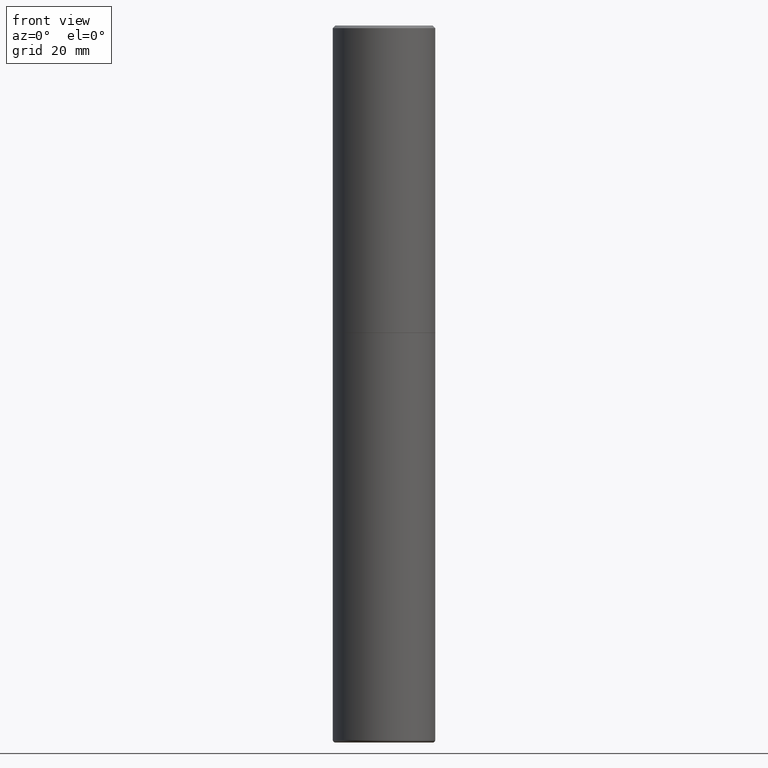
[diagram: clean part render]
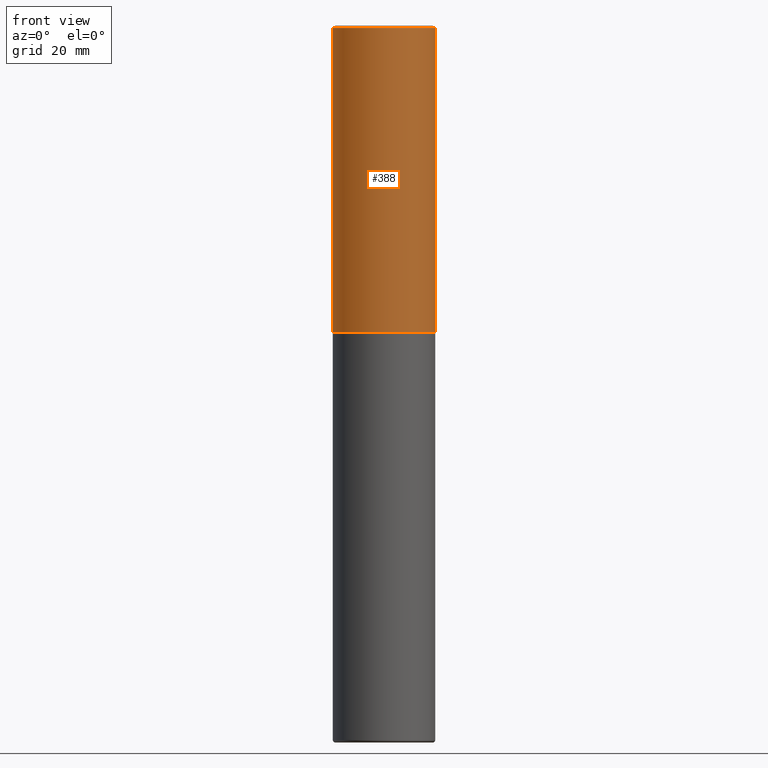
[diagram: same view with one face highlighted and labeled with its STEP entity id]
A machine part, front view. The second image highlights one B-rep face of the part: STEP entity #388.
In plain terms, the highlighted cylindrical surface (partial cylindrical patch) has radius 10 mm, axis along (-0, 0, 1).
Its self-contained STEP definition (entity closure, byte-faithful):
#5 = CARTESIAN_POINT ( 'NONE',  ( 0.3937000000000001609, -2.749192406205084400E-15, 1.919750796630860732E-29 ) ) ;
#7 = ORIENTED_EDGE ( 'NONE', *, *, #146, .F. ) ;
#9 = CARTESIAN_POINT ( 'NONE',  ( -0.3937000000000000499, 2.679362779428219918E-15, -0.02000000000000008715 ) ) ;
#17 = VERTEX_POINT ( 'NONE', #130 ) ;
#18 = AXIS2_PLACEMENT_3D ( 'NONE', #43, #305, #366 ) ;
#43 = CARTESIAN_POINT ( 'NONE',  ( 0.000000000000000000, 0.000000000000000000, 0.000000000000000000 ) ) ;
#85 = AXIS2_PLACEMENT_3D ( 'NONE', #261, #131, #265 ) ;
#88 = DIRECTION ( 'NONE',  ( -2.445468806185136877E-29, 3.491481338843145188E-15, 1.000000000000000000 ) ) ;
#98 = VECTOR ( 'NONE', #88, 39.37007874015748143 ) ;
#126 = DIRECTION ( 'NONE',  ( -2.445468806185136597E-29, 3.491481338843145583E-15, 1.000000000000000000 ) ) ;
#129 = EDGE_CURVE ( 'NONE', #17, #270, #278, .T. ) ;
#130 = CARTESIAN_POINT ( 'NONE',  ( -0.3937000000000003830, -1.359550931339130834E-15, -2.361199999999999743 ) ) ;
#131 = DIRECTION ( 'NONE',  ( -2.445468806185136597E-29, 3.491481338843145583E-15, 1.000000000000000000 ) ) ;
#146 = EDGE_CURVE ( 'NONE', #17, #207, #248, .T. ) ;
#168 = LINE ( 'NONE', #5, #307 ) ;
#186 = DIRECTION ( 'NONE',  ( 1.000000000000000000, -6.982962677686265922E-15, 0.000000000000000000 ) ) ;
#192 = CARTESIAN_POINT ( 'NONE',  ( -0.3937000000000001609, 2.797406750687515575E-15, -1.936584745033357296E-29 ) ) ;
#195 = DIRECTION ( 'NONE',  ( -2.445468806185136877E-29, 3.491481338843145188E-15, 1.000000000000000000 ) ) ;
#196 = AXIS2_PLACEMENT_3D ( 'NONE', #411, #126, #186 ) ;
#207 = VERTEX_POINT ( 'NONE', #9 ) ;
#248 = LINE ( 'NONE', #192, #98 ) ;
#261 = CARTESIAN_POINT ( 'NONE',  ( 4.890937612370294178E-31, -6.982962677686321191E-17, -0.02000000000000008715 ) ) ;
#265 = DIRECTION ( 'NONE',  ( 1.000000000000000000, -6.982962677686265922E-15, 0.000000000000000000 ) ) ;
#266 = EDGE_CURVE ( 'NONE', #270, #404, #168, .T. ) ;
#270 = VERTEX_POINT ( 'NONE', #359 ) ;
#272 = CARTESIAN_POINT ( 'NONE',  ( 0.3937000000000000499, -2.770807688499515734E-15, -0.02000000000000008715 ) ) ;
#278 = CIRCLE ( 'NONE', #196, 0.3937000000000002720 ) ;
#291 = EDGE_CURVE ( 'NONE', #207, #404, #415, .T. ) ;
#295 = FACE_OUTER_BOUND ( 'NONE', #376, .T. ) ;
#305 = DIRECTION ( 'NONE',  ( -2.445468806185136597E-29, 3.491481338843145583E-15, 1.000000000000000000 ) ) ;
#307 = VECTOR ( 'NONE', #195, 39.37007874015748143 ) ;
#310 = ORIENTED_EDGE ( 'NONE', *, *, #129, .T. ) ;
#339 = ORIENTED_EDGE ( 'NONE', *, *, #266, .T. ) ;
#359 = CARTESIAN_POINT ( 'NONE',  ( 0.3937000000000002720, -1.099327814348151984E-14, -2.361199999999999743 ) ) ;
#366 = DIRECTION ( 'NONE',  ( 1.000000000000000000, -6.982962677686266711E-15, 4.876176775795935793E-29 ) ) ;
#376 = EDGE_LOOP ( 'NONE', ( #7, #310, #339, #403 ) ) ;
#388 = ADVANCED_FACE ( 'NONE', ( #295 ), #400, .T. ) ;
#400 = CYLINDRICAL_SURFACE ( 'NONE', #18, 0.3937000000000001609 ) ;
#403 = ORIENTED_EDGE ( 'NONE', *, *, #291, .F. ) ;
#404 = VERTEX_POINT ( 'NONE', #272 ) ;
#411 = CARTESIAN_POINT ( 'NONE',  ( 5.774240945164344150E-29, -8.244085737276435042E-15, -2.361199999999999743 ) ) ;
#415 = CIRCLE ( 'NONE', #85, 0.3937000000000000499 ) ;